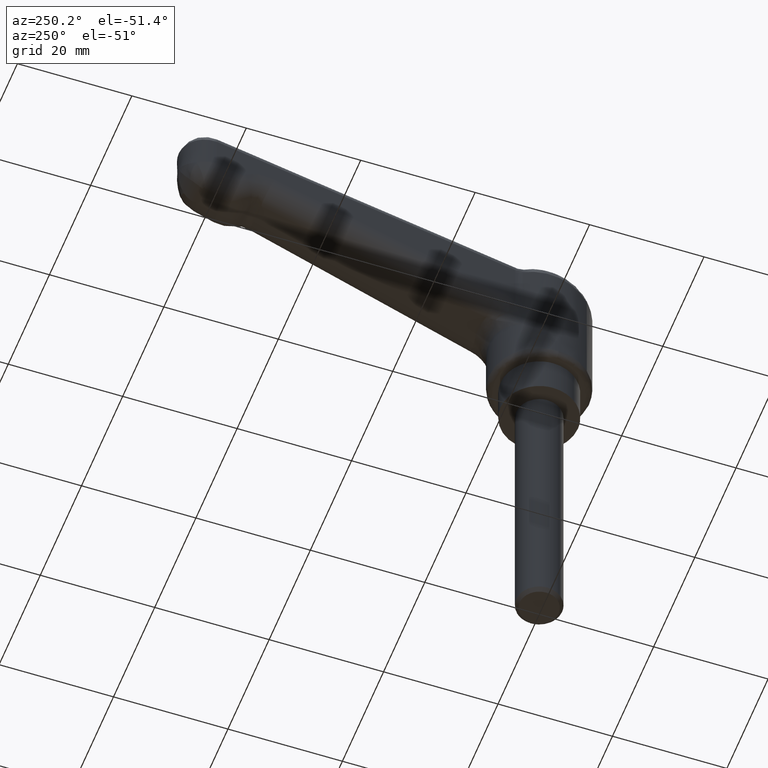
[diagram: clean part render]
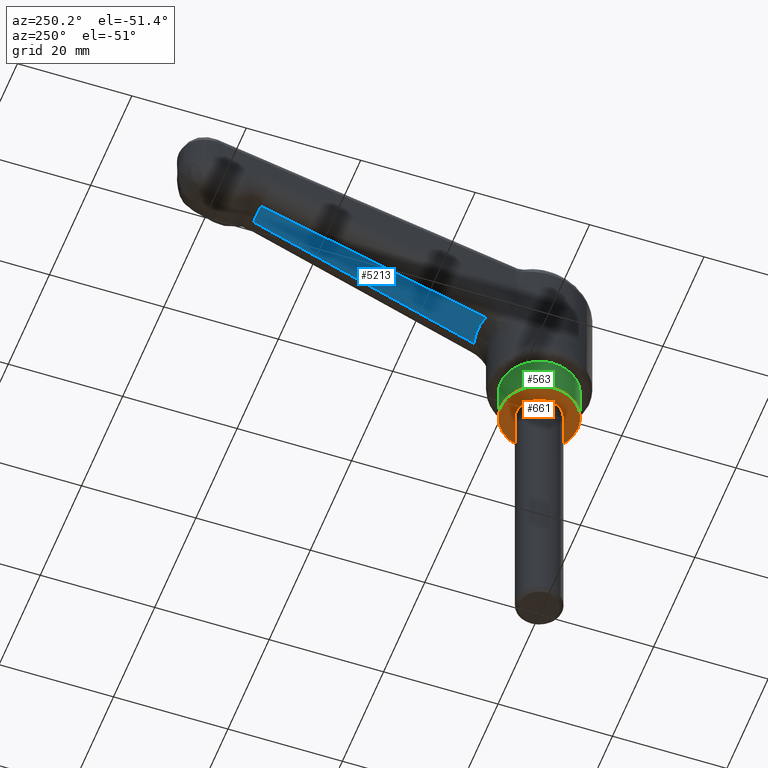
[diagram: same view with three faces highlighted in distinct colors, each labeled with its STEP entity id]
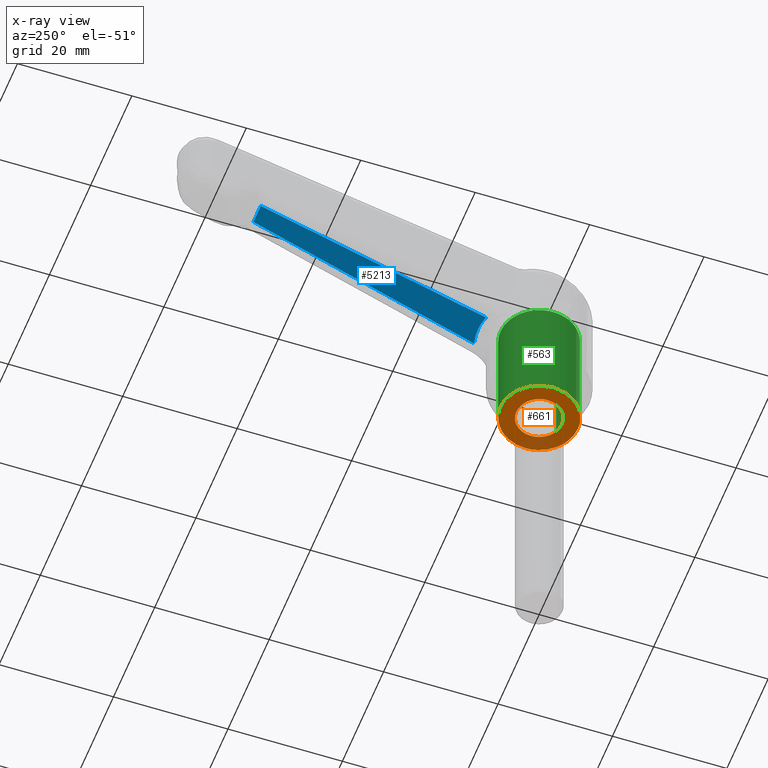
[diagram: x-ray of the same camera — body ghosted, the three highlighted faces saturated]
A machine part, auxiliary view with three faces highlighted in distinct colors.
The next image is the same camera in x-ray (body ghosted, the three faces saturated) — at least one of them is partly hidden behind the body in this view.
Their STEP definitions:

[orange] entity #661 — the highlighted face is a freeform B-spline surface patch.
#299=CARTESIAN_POINT('',(-2.901497246670961,-2.753418077534842,1.110223E-016));
#300=VERTEX_POINT('',#299);
#306=CARTESIAN_POINT('',(-4.0,0.0,0.0));
#307=VERTEX_POINT('',#306);
#308=CARTESIAN_POINT('',(-4.0,0.0,0.0));
#309=CARTESIAN_POINT('',(-4.000077763660245,-0.347977334433312,1.403101E-017));
#310=CARTESIAN_POINT('',(-3.904534334968391,-1.075550676447445,4.336796E-017));
#311=CARTESIAN_POINT('',(-3.503205711203882,-2.016058426142730,8.129076E-017));
#312=CARTESIAN_POINT('',(-3.097487655989828,-2.546916592336573,1.026958E-016));
#313=CARTESIAN_POINT('',(-2.901497246670961,-2.753418077534842,1.110223E-016));
#314=B_SPLINE_CURVE_WITH_KNOTS('',3,(#308,#309,#310,#311,#312,#313),.UNSPECIFIED.,.F.,.U.,(4,1,1,4),(0.000000026868939,1.043932738638871,2.182763257200464,3.036890580233819),.UNSPECIFIED.);
#315=EDGE_CURVE('',#307,#300,#314,.T.);
#317=CARTESIAN_POINT('',(-0.000001310728836,3.999999999999785,0.0));
#318=VERTEX_POINT('',#317);
#319=CARTESIAN_POINT('',(-0.000001310728836,3.999999999999785,0.0));
#320=CARTESIAN_POINT('',(-0.343626388606430,4.000100082920182,0.0));
#321=CARTESIAN_POINT('',(-0.850800286706484,3.934219362505584,0.0));
#322=CARTESIAN_POINT('',(-1.566834308696603,3.697644280529159,0.0));
#323=CARTESIAN_POINT('',(-2.239959267594376,3.353755062563969,0.0));
#324=CARTESIAN_POINT('',(-2.823634423520542,2.868700544100535,0.0));
#325=CARTESIAN_POINT('',(-3.291567598509909,2.298394396195199,0.0));
#326=CARTESIAN_POINT('',(-3.646234368258779,1.706795220943366,0.0));
#327=CARTESIAN_POINT('',(-3.929080404443302,0.916276217007626,0.0));
#328=CARTESIAN_POINT('',(-4.000052812708886,0.310889821988808,0.0));
#329=CARTESIAN_POINT('',(-4.0,0.0,0.0));
#330=B_SPLINE_CURVE_WITH_KNOTS('',3,(#319,#320,#321,#322,#323,#324,#325,#326,#327,#328,#329),.UNSPECIFIED.,.F.,.U.,(4,1,1,1,1,1,1,1,4),(0.000000108513839,1.030840447523887,1.521718289483905,2.258050345883904,3.288864727055504,3.779736266230428,4.466977422615287,5.350560502171157,6.283223992754478),.UNSPECIFIED.);
#331=EDGE_CURVE('',#318,#307,#330,.T.);
#333=CARTESIAN_POINT('',(4.0,0.0,0.0));
#334=VERTEX_POINT('',#333);
#335=CARTESIAN_POINT('',(4.0,0.0,0.0));
#336=CARTESIAN_POINT('',(4.000009832331291,0.212711574215631,0.0));
#337=CARTESIAN_POINT('',(3.962063079485493,0.687213973337722,0.0));
#338=CARTESIAN_POINT('',(3.740118949924691,1.529909188350133,0.0));
#339=CARTESIAN_POINT('',(3.309477418454680,2.312381686260085,0.0));
#340=CARTESIAN_POINT('',(2.746835022839567,2.932882318501319,0.0));
#341=CARTESIAN_POINT('',(2.180230403947981,3.380742059234260,0.0));
#342=CARTESIAN_POINT('',(1.510639130403759,3.733418947625701,0.0));
#343=CARTESIAN_POINT('',(0.752658497355477,3.953173424505867,0.0));
#344=CARTESIAN_POINT('',(0.245430135431822,4.000023969248082,0.0));
#345=CARTESIAN_POINT('',(-0.000001310728836,3.999999999999785,0.0));
#346=B_SPLINE_CURVE_WITH_KNOTS('',3,(#335,#336,#337,#338,#339,#340,#341,#342,#343,#344,#345),.UNSPECIFIED.,.F.,.U.,(4,1,1,1,1,1,1,1,4),(0.000000108058436,0.638138734949206,1.423543139966570,2.601651451234042,3.288865498431841,3.927009203593402,4.761507852815424,5.546930420740713,6.283225470260624),.UNSPECIFIED.);
#347=EDGE_CURVE('',#334,#318,#346,.T.);
#349=CARTESIAN_POINT('',(2.582968428078700,-3.054222762769633,0.0));
#350=VERTEX_POINT('',#349);
#351=CARTESIAN_POINT('',(2.582968428078700,-3.054222762769633,0.0));
#352=CARTESIAN_POINT('',(2.790296136212086,-2.878928578792520,0.0));
#353=CARTESIAN_POINT('',(3.206938756000878,-2.446618998555652,0.0));
#354=CARTESIAN_POINT('',(3.668702686397689,-1.681646929076921,0.0));
#355=CARTESIAN_POINT('',(3.942661626154801,-0.832595813085380,0.0));
#356=CARTESIAN_POINT('',(4.000035068243687,-0.271501380406431,0.0));
#357=CARTESIAN_POINT('',(4.0,0.0,0.0));
#358=B_SPLINE_CURVE_WITH_KNOTS('',3,(#351,#352,#353,#354,#355,#356,#357),.UNSPECIFIED.,.F.,.U.,(4,1,1,1,4),(0.000000035720412,0.814506863919960,1.791900183079446,2.660726399171880,3.475233227349201),.UNSPECIFIED.);
#359=EDGE_CURVE('',#350,#334,#358,.T.);
#385=CARTESIAN_POINT('',(0.000001310728859,-3.999999999999786,0.0));
#386=VERTEX_POINT('',#385);
#387=CARTESIAN_POINT('',(0.000001310728859,-3.999999999999786,0.0));
#388=CARTESIAN_POINT('',(0.365641727732168,-4.000141060668648,0.0));
#389=CARTESIAN_POINT('',(0.965176145681968,-3.917168764754007,0.0));
#390=CARTESIAN_POINT('',(1.843905577036057,-3.584446151881968,0.0));
#391=CARTESIAN_POINT('',(2.326181268750274,-3.271507913737377,0.0));
#392=CARTESIAN_POINT('',(2.582968428078700,-3.054222762769633,0.0));
#393=B_SPLINE_CURVE_WITH_KNOTS('',3,(#387,#388,#389,#390,#391,#392),.UNSPECIFIED.,.F.,.U.,(4,1,1,4),(0.000000020537544,1.096873842027154,1.798867938803672,2.807991780716008),.UNSPECIFIED.);
#394=EDGE_CURVE('',#386,#350,#393,.T.);
#396=CARTESIAN_POINT('',(-2.901497246670961,-2.753418077534842,1.110223E-016));
#397=CARTESIAN_POINT('',(-2.599076194408022,-3.072516339482438,9.945053E-017));
#398=CARTESIAN_POINT('',(-1.983318856102883,-3.536857063637712,7.588933E-017));
#399=CARTESIAN_POINT('',(-0.963723170969565,-3.922187454478040,3.687575E-017));
#400=CARTESIAN_POINT('',(-0.321255402834672,-4.000075260185376,1.229250E-017));
#401=CARTESIAN_POINT('',(0.000001310728859,-3.999999999999786,0.0));
#402=B_SPLINE_CURVE_WITH_KNOTS('',3,(#396,#397,#398,#399,#400,#401),.UNSPECIFIED.,.F.,.U.,(4,1,1,4),(0.000000029101205,1.318825168353258,2.282575932528282,3.246335336364667),.UNSPECIFIED.);
#403=EDGE_CURVE('',#300,#386,#402,.T.);
#436=CARTESIAN_POINT('',(-6.750000000000000,0.0,0.0));
#437=VERTEX_POINT('',#436);
#438=CARTESIAN_POINT('',(-4.707665774555602,-4.837393883639553,2.839428E-017));
#439=VERTEX_POINT('',#438);
#440=CARTESIAN_POINT('',(-6.750000000000000,0.0,0.0));
#441=CARTESIAN_POINT('',(-6.750047336410116,-0.421344151120893,2.473184E-018));
#442=CARTESIAN_POINT('',(-6.678730654075811,-1.179733708012998,6.924739E-018));
#443=CARTESIAN_POINT('',(-6.335750928619945,-2.458479325299646,1.443065E-017));
#444=CARTESIAN_POINT('',(-5.717518469096658,-3.700192278072868,2.171920E-017));
#445=CARTESIAN_POINT('',(-5.049922897159036,-4.504398886519014,2.643969E-017));
#446=CARTESIAN_POINT('',(-4.707665774555602,-4.837393883639553,2.839428E-017));
#447=B_SPLINE_CURVE_WITH_KNOTS('',3,(#440,#441,#442,#443,#444,#445,#446),.UNSPECIFIED.,.F.,.U.,(4,1,1,1,4),(0.000000021332869,1.264032321652425,2.275263053558142,3.960635799513583,5.393206977055107),.UNSPECIFIED.);
#448=EDGE_CURVE('',#437,#439,#447,.T.);
#512=CARTESIAN_POINT('',(4.560234118822306,-4.976622161622396,-6.450396E-013));
#513=VERTEX_POINT('',#512);
#519=CARTESIAN_POINT('',(6.750000000000000,0.0,0.0));
#520=VERTEX_POINT('',#519);
#521=CARTESIAN_POINT('',(4.560234118822306,-4.976622161622396,-6.450396E-013));
#522=CARTESIAN_POINT('',(4.839593815842351,-4.720658857199279,-6.118632E-013));
#523=CARTESIAN_POINT('',(5.414586019725966,-4.097046491192747,-5.310343E-013));
#524=CARTESIAN_POINT('',(6.080686100141539,-3.027513011267005,-3.924079E-013));
#525=CARTESIAN_POINT('',(6.610225220284471,-1.632041069570679,-2.115353E-013));
#526=CARTESIAN_POINT('',(6.750237658830870,-0.612089886491410,-7.933538E-014));
#527=CARTESIAN_POINT('',(6.750000000000000,0.0,0.0));
#528=B_SPLINE_CURVE_WITH_KNOTS('',3,(#521,#522,#523,#524,#525,#526,#527),.UNSPECIFIED.,.F.,.U.,(4,1,1,1,4),(0.000000021068526,1.136687331399160,2.535704602375728,3.759807988967159,5.596001072074944),.UNSPECIFIED.);
#529=EDGE_CURVE('',#513,#520,#528,.T.);
#531=CARTESIAN_POINT('',(-0.000000998770336,6.749999999999925,0.0));
#532=VERTEX_POINT('',#531);
#533=CARTESIAN_POINT('',(6.750000000000000,0.0,0.0));
#534=CARTESIAN_POINT('',(6.750136258018053,0.552243960625429,0.0));
#535=CARTESIAN_POINT('',(6.617115527061538,1.629042355819596,0.0));
#536=CARTESIAN_POINT('',(6.124867501797508,2.928939402502294,0.0));
#537=CARTESIAN_POINT('',(5.477996322479620,3.993137912111419,0.0));
#538=CARTESIAN_POINT('',(4.830648627712150,4.752993725542606,0.0));
#539=CARTESIAN_POINT('',(4.013693036640612,5.457673308529116,0.0));
#540=CARTESIAN_POINT('',(3.006934013023683,6.095333880880379,0.0));
#541=CARTESIAN_POINT('',(1.629036600273349,6.617139910017195,0.0));
#542=CARTESIAN_POINT('',(0.552236735339489,6.750120464792025,0.0));
#543=CARTESIAN_POINT('',(-0.000000998770336,6.749999999999925,0.0));
#544=B_SPLINE_CURVE_WITH_KNOTS('',3,(#533,#534,#535,#536,#537,#538,#539,#540,#541,#542,#543),.UNSPECIFIED.,.F.,.U.,(4,1,1,1,1,1,1,1,4),(0.000000063344105,1.656709023213059,3.230585617361703,4.141793952966691,5.384285430353085,6.212652127103777,7.372359201802700,8.946247108303380,10.602942297336080),.UNSPECIFIED.);
#545=EDGE_CURVE('',#520,#532,#544,.T.);
#547=CARTESIAN_POINT('',(-0.000000998770336,6.749999999999925,0.0));
#548=CARTESIAN_POINT('',(-0.524622463407580,6.750089913100186,0.0));
#549=CARTESIAN_POINT('',(-1.601460507585232,6.623883435731583,0.0));
#550=CARTESIAN_POINT('',(-2.905277826304261,6.139242651621818,0.0));
#551=CARTESIAN_POINT('',(-4.087789726761414,5.420557687663190,0.0));
#552=CARTESIAN_POINT('',(-4.999112414980342,4.604711732190676,0.0));
#553=CARTESIAN_POINT('',(-5.758467362591863,3.580699468427991,0.0));
#554=CARTESIAN_POINT('',(-6.300549757278659,2.520107677927524,0.0));
#555=CARTESIAN_POINT('',(-6.662963774557046,1.325341205957210,0.0));
#556=CARTESIAN_POINT('',(-6.750047966986276,0.441783395306466,0.0));
#557=CARTESIAN_POINT('',(-6.750000000000000,0.0,0.0));
#558=B_SPLINE_CURVE_WITH_KNOTS('',3,(#547,#548,#549,#550,#551,#552,#553,#554,#555,#556,#557),.UNSPECIFIED.,.F.,.U.,(4,1,1,1,1,1,1,1,4),(0.000000063689653,1.573864517690627,3.230585274430066,4.141793513251195,5.715641087214728,6.875333693592918,7.952207010582765,9.277590304940656,10.602941171482099),.UNSPECIFIED.);
#559=EDGE_CURVE('',#532,#437,#558,.T.);
#578=CARTESIAN_POINT('',(0.000000998770202,-6.749999999999926,0.0));
#579=VERTEX_POINT('',#578);
#580=CARTESIAN_POINT('',(-4.707665774555602,-4.837393883639553,2.839428E-017));
#581=CARTESIAN_POINT('',(-4.260554553984607,-5.272824316417907,2.569753E-017));
#582=CARTESIAN_POINT('',(-3.443190793448065,-5.872246501658789,2.076760E-017));
#583=CARTESIAN_POINT('',(-2.294356612312924,-6.371495422479715,1.383841E-017));
#584=CARTESIAN_POINT('',(-1.220986860081883,-6.670106204491453,7.364386E-018));
#585=CARTESIAN_POINT('',(-0.488420935630072,-6.750097305107967,2.945916E-018));
#586=CARTESIAN_POINT('',(0.000000998770202,-6.749999999999926,0.0));
#587=B_SPLINE_CURVE_WITH_KNOTS('',3,(#580,#581,#582,#583,#584,#585,#586),.UNSPECIFIED.,.F.,.U.,(4,1,1,1,4),(0.000000021400204,1.872250162248422,3.011874352324654,3.744496841780908,5.209735619777325),.UNSPECIFIED.);
#588=EDGE_CURVE('',#439,#579,#587,.T.);
#590=CARTESIAN_POINT('',(0.000000998770202,-6.749999999999926,0.0));
#591=CARTESIAN_POINT('',(0.521567947036026,-6.750120939369624,-7.377502E-014));
#592=CARTESIAN_POINT('',(1.277763868577844,-6.661886502877545,-1.807380E-013));
#593=CARTESIAN_POINT('',(2.455957404763574,-6.318069780641911,-3.473921E-013));
#594=CARTESIAN_POINT('',(3.499518649139184,-5.826233824254697,-4.950026E-013));
#595=CARTESIAN_POINT('',(4.233416920362688,-5.276163060300921,-5.988117E-013));
#596=CARTESIAN_POINT('',(4.560234118822306,-4.976622161622396,-6.450396E-013));
#597=B_SPLINE_CURVE_WITH_KNOTS('',3,(#590,#591,#592,#593,#594,#595,#596),.UNSPECIFIED.,.F.,.U.,(4,1,1,1,4),(0.000000020606876,1.564669063019881,2.268781367874067,3.676971222134433,5.006940474752694),.UNSPECIFIED.);
#598=EDGE_CURVE('',#579,#513,#597,.T.);
#640=CARTESIAN_POINT('',(-7.424324973834381,7.424324973834299,0.0));
#641=CARTESIAN_POINT('',(7.424325335932597,7.424324973834299,0.0));
#642=CARTESIAN_POINT('',(-7.424324973834381,-7.424325335932516,0.0));
#643=CARTESIAN_POINT('',(7.424325335932597,-7.424325335932516,0.0));
#644=B_SPLINE_SURFACE_WITH_KNOTS('',1,1,((#640,#642),(#641,#643)),.UNSPECIFIED.,.F.,.F.,.U.,(2,2),(2,2),(0.0,14.848650309766979),(0.0,14.848650309766811),.UNSPECIFIED.);
#645=ORIENTED_EDGE('',*,*,#559,.F.);
#646=ORIENTED_EDGE('',*,*,#545,.F.);
#647=ORIENTED_EDGE('',*,*,#529,.F.);
#648=ORIENTED_EDGE('',*,*,#598,.F.);
#649=ORIENTED_EDGE('',*,*,#588,.F.);
#650=ORIENTED_EDGE('',*,*,#448,.F.);
#651=EDGE_LOOP('',(#645,#646,#647,#648,#649,#650));
#652=FACE_OUTER_BOUND('',#651,.T.);
#653=ORIENTED_EDGE('',*,*,#347,.T.);
#654=ORIENTED_EDGE('',*,*,#331,.T.);
#655=ORIENTED_EDGE('',*,*,#315,.T.);
#656=ORIENTED_EDGE('',*,*,#403,.T.);
#657=ORIENTED_EDGE('',*,*,#394,.T.);
#658=ORIENTED_EDGE('',*,*,#359,.T.);
#659=EDGE_LOOP('',(#653,#654,#655,#656,#657,#658));
#660=FACE_BOUND('',#659,.T.);
#661=ADVANCED_FACE('',(#652,#660),#644,.T.);

[blue] entity #5213 — the highlighted face is a freeform B-spline surface patch.
#3172=CARTESIAN_POINT('',(10.359522173690999,-2.903622422313825,18.684377667119900));
#3173=VERTEX_POINT('',#3172);
#3222=CARTESIAN_POINT('',(49.300344071999113,-1.784934140387715,32.857667846055499));
#3223=VERTEX_POINT('',#3222);
#3245=CARTESIAN_POINT('',(49.300344071999113,-1.784934140387715,32.857667846055499));
#3246=CARTESIAN_POINT('',(10.359522173690999,-2.903622422313825,18.684377667119900));
#3247=QUASI_UNIFORM_CURVE('',1,(#3245,#3246),.UNSPECIFIED.,.F.,.U.);
#3248=EDGE_CURVE('',#3223,#3173,#3247,.T.);
#3708=CARTESIAN_POINT('',(10.359522173690999,2.903622422313820,18.684377667119900));
#3709=VERTEX_POINT('',#3708);
#3758=CARTESIAN_POINT('',(49.300344071999113,1.784934140387715,32.857667846055499));
#3759=VERTEX_POINT('',#3758);
#3774=CARTESIAN_POINT('',(10.359522173690999,2.903622422313820,18.684377667119900));
#3775=CARTESIAN_POINT('',(49.300344071999113,1.784934140387715,32.857667846055499));
#3776=QUASI_UNIFORM_CURVE('',1,(#3774,#3775),.UNSPECIFIED.,.F.,.U.);
#3777=EDGE_CURVE('',#3709,#3759,#3776,.T.);
#4989=CARTESIAN_POINT('',(49.300344071999113,1.784934140387715,32.857667846055499));
#4990=CARTESIAN_POINT('',(49.300344071999113,-1.784934140387715,32.857667846055499));
#4991=QUASI_UNIFORM_CURVE('',1,(#4989,#4990),.UNSPECIFIED.,.F.,.U.);
#4992=EDGE_CURVE('',#3759,#3223,#4991,.T.);
#5124=CARTESIAN_POINT('',(10.359522173690999,-2.903622422313825,18.684377667119900));
#5125=CARTESIAN_POINT('',(10.487836621823490,-2.401586238627246,18.731080274278039));
#5126=CARTESIAN_POINT('',(10.700132750694770,-1.257815553961558,18.808349692119691));
#5127=CARTESIAN_POINT('',(10.769167585533760,0.706940979714736,18.833476299595620));
#5128=CARTESIAN_POINT('',(10.555852092136950,2.135819450410849,18.755835863667691));
#5129=CARTESIAN_POINT('',(10.359522173690999,2.903622422313820,18.684377667119900));
#5130=B_SPLINE_CURVE_WITH_KNOTS('',3,(#5124,#5125,#5126,#5127,#5128,#5129),.UNSPECIFIED.,.F.,.U.,(4,1,1,4),(8.522018E-009,1.560832915503926,3.488915614575516,5.876074603483098),.UNSPECIFIED.);
#5131=EDGE_CURVE('',#3173,#3709,#5130,.T.);
#5202=CARTESIAN_POINT('',(8.414427968920789,-3.193694291047408,17.976421767740849));
#5203=CARTESIAN_POINT('',(51.245436187820879,-3.193694291047408,33.565622985119951));
#5204=CARTESIAN_POINT('',(8.414427968920789,3.193694446809848,17.976421767740849));
#5205=CARTESIAN_POINT('',(51.245436187820879,3.193694446809848,33.565622985119951));
#5206=B_SPLINE_SURFACE_WITH_KNOTS('',1,1,((#5202,#5204),(#5203,#5205)),.UNSPECIFIED.,.F.,.F.,.U.,(2,2),(2,2),(0.0,45.579803198822837),(0.0,6.387388737857256),.UNSPECIFIED.);
#5207=ORIENTED_EDGE('',*,*,#4992,.T.);
#5208=ORIENTED_EDGE('',*,*,#3248,.T.);
#5209=ORIENTED_EDGE('',*,*,#5131,.T.);
#5210=ORIENTED_EDGE('',*,*,#3777,.T.);
#5211=EDGE_LOOP('',(#5207,#5208,#5209,#5210));
#5212=FACE_OUTER_BOUND('',#5211,.T.);
#5213=ADVANCED_FACE('',(#5212),#5206,.F.);

[green] entity #563 — the highlighted face is a freeform B-spline surface patch.
#410=CARTESIAN_POINT('',(-4.707665948634954,-4.837394062515783,20.500000000000004));
#411=CARTESIAN_POINT('',(-4.846110088419099,-4.702662685615937,20.500000000000000));
#412=CARTESIAN_POINT('',(-4.976622023468336,-4.560233901405705,20.500000000000000));
#413=CARTESIAN_POINT('',(-9.536855924874040,0.416388122062631,20.500000000000007));
#414=CARTESIAN_POINT('',(-4.560233901405705,4.976622023468336,20.500000000000000));
#415=CARTESIAN_POINT('',(0.416388122062631,9.536855924874040,20.500000000000007));
#416=CARTESIAN_POINT('',(4.976622023468336,4.560233901405705,20.500000000000000));
#417=CARTESIAN_POINT('',(9.536855924874040,-0.416388122062631,20.500000000000007));
#418=CARTESIAN_POINT('',(4.560233901405705,-4.976622023468336,20.500000000000000));
#419=CARTESIAN_POINT('',(-4.707665948634954,-4.837394062515783,-0.512500000000003));
#420=CARTESIAN_POINT('',(-4.846110088419099,-4.702662685615937,-0.512500000000003));
#421=CARTESIAN_POINT('',(-4.976622023468336,-4.560233901405705,-0.512500000000003));
#422=CARTESIAN_POINT('',(-9.536855924874040,0.416388122062631,-0.512500000000003));
#423=CARTESIAN_POINT('',(-4.560233901405705,4.976622023468336,-0.512500000000003));
#424=CARTESIAN_POINT('',(0.416388122062631,9.536855924874040,-0.512500000000003));
#425=CARTESIAN_POINT('',(4.976622023468336,4.560233901405705,-0.512500000000003));
#426=CARTESIAN_POINT('',(9.536855924874040,-0.416388122062631,-0.512500000000003));
#427=CARTESIAN_POINT('',(4.560233901405705,-4.976622023468336,-0.512500000000003));
#435=(BOUNDED_SURFACE()B_SPLINE_SURFACE(2,1,((#410,#419),(#411,#420),(#412,#421),(#413,#422),(#414,#423),(#415,#424),(#416,#425),(#417,#426),(#418,#427)),.UNSPECIFIED.,.F.,.F.,.U.)B_SPLINE_SURFACE_WITH_KNOTS((3,2,2,2,3),(2,2),(0.0,0.447350647362943,11.631116831436509,22.814883015510070,33.998649199583632),(0.0,21.012500000000010),.UNSPECIFIED.)GEOMETRIC_REPRESENTATION_ITEM()RATIONAL_B_SPLINE_SURFACE(((0.977505800795127,0.977505800795127),(0.988284271247462,0.988284271247462),(1.0,1.0),(0.707106781186548,0.707106781186548),(1.0,1.0),(0.707106781186548,0.707106781186548),(1.0,1.0),(0.707106781186548,0.707106781186548),(1.0,1.0)))REPRESENTATION_ITEM('')SURFACE());
#436=CARTESIAN_POINT('',(-6.750000000000000,0.0,0.0));
#437=VERTEX_POINT('',#436);
#438=CARTESIAN_POINT('',(-4.707665774555602,-4.837393883639553,2.839428E-017));
#439=VERTEX_POINT('',#438);
#440=CARTESIAN_POINT('',(-6.750000000000000,0.0,0.0));
#441=CARTESIAN_POINT('',(-6.750047336410116,-0.421344151120893,2.473184E-018));
#442=CARTESIAN_POINT('',(-6.678730654075811,-1.179733708012998,6.924739E-018));
#443=CARTESIAN_POINT('',(-6.335750928619945,-2.458479325299646,1.443065E-017));
#444=CARTESIAN_POINT('',(-5.717518469096658,-3.700192278072868,2.171920E-017));
#445=CARTESIAN_POINT('',(-5.049922897159036,-4.504398886519014,2.643969E-017));
#446=CARTESIAN_POINT('',(-4.707665774555602,-4.837393883639553,2.839428E-017));
#447=B_SPLINE_CURVE_WITH_KNOTS('',3,(#440,#441,#442,#443,#444,#445,#446),.UNSPECIFIED.,.F.,.U.,(4,1,1,1,4),(0.000000021332869,1.264032321652425,2.275263053558142,3.960635799513583,5.393206977055107),.UNSPECIFIED.);
#448=EDGE_CURVE('',#437,#439,#447,.T.);
#449=ORIENTED_EDGE('',*,*,#448,.T.);
#450=CARTESIAN_POINT('',(-4.707665774555602,-4.837393883639553,20.0));
#451=VERTEX_POINT('',#450);
#452=CARTESIAN_POINT('',(-4.707665774555602,-4.837393883639553,20.0));
#453=CARTESIAN_POINT('',(-4.707665774555602,-4.837393883639553,2.839428E-017));
#454=QUASI_UNIFORM_CURVE('',1,(#452,#453),.UNSPECIFIED.,.F.,.U.);
#455=EDGE_CURVE('',#451,#439,#454,.T.);
#456=ORIENTED_EDGE('',*,*,#455,.F.);
#457=CARTESIAN_POINT('',(-6.750000000000000,0.0,20.0));
#458=VERTEX_POINT('',#457);
#459=CARTESIAN_POINT('',(-6.750000000000000,0.0,20.0));
#460=CARTESIAN_POINT('',(-6.750047852459818,-0.421344382200241,19.999999999999979));
#461=CARTESIAN_POINT('',(-6.678750180061511,-1.179743160758535,20.000000000000082));
#462=CARTESIAN_POINT('',(-6.408624211550302,-2.186355254477525,19.999999999999890));
#463=CARTESIAN_POINT('',(-6.014554966165452,-3.119779151055231,20.000000000000050));
#464=CARTESIAN_POINT('',(-5.469862901057756,-4.009576945231448,20.000000000000039));
#465=CARTESIAN_POINT('',(-4.969372797715725,-4.582732008596127,19.999999999999972));
#466=CARTESIAN_POINT('',(-4.707665774555602,-4.837393883639553,20.0));
#467=B_SPLINE_CURVE_WITH_KNOTS('',3,(#459,#460,#461,#462,#463,#464,#465,#466),.UNSPECIFIED.,.F.,.U.,(4,1,1,1,1,4),(0.000000021332869,1.264032321652425,2.275263053558142,3.117943944847564,4.297715579759432,5.393206977055107),.UNSPECIFIED.);
#468=EDGE_CURVE('',#458,#451,#467,.T.);
#469=ORIENTED_EDGE('',*,*,#468,.F.);
#470=CARTESIAN_POINT('',(-0.000000998770336,6.749999999999925,20.0));
#471=VERTEX_POINT('',#470);
#472=CARTESIAN_POINT('',(-0.000000998770336,6.749999999999925,20.0));
#473=CARTESIAN_POINT('',(-0.524631747445214,6.750110307263759,20.000000000000011));
#474=CARTESIAN_POINT('',(-1.325311384082799,6.656164600320455,19.999999999999961));
#475=CARTESIAN_POINT('',(-2.357723671330400,6.342917325021261,20.000000000000028));
#476=CARTESIAN_POINT('',(-3.369427482873381,5.894627709943009,19.999999999999940));
#477=CARTESIAN_POINT('',(-4.378754531556544,5.202125329216883,20.000000000000121));
#478=CARTESIAN_POINT('',(-5.276839458970125,4.258664903834936,19.999999999999769));
#479=CARTESIAN_POINT('',(-5.960187740921620,3.249479722978194,20.000000000000359));
#480=CARTESIAN_POINT('',(-6.570527255918871,1.849817054373054,19.999999999999591));
#481=CARTESIAN_POINT('',(-6.750311248677847,0.690323562978389,20.000000000000220));
#482=CARTESIAN_POINT('',(-6.750000000000000,0.0,20.0));
#483=B_SPLINE_CURVE_WITH_KNOTS('',3,(#472,#473,#474,#475,#476,#477,#478,#479,#480,#481,#482),.UNSPECIFIED.,.F.,.U.,(4,1,1,1,1,1,1,1,4),(0.000000063689653,1.573864517690627,2.402228265621648,3.230585274430066,4.887302855312617,6.046968030854600,7.123840372897853,8.532062631622923,10.602941171482099),.UNSPECIFIED.);
#484=EDGE_CURVE('',#471,#458,#483,.T.);
#485=ORIENTED_EDGE('',*,*,#484,.F.);
#486=CARTESIAN_POINT('',(6.750000000000000,0.0,20.0));
#487=VERTEX_POINT('',#486);
#488=CARTESIAN_POINT('',(6.750000000000000,0.0,20.0));
#489=CARTESIAN_POINT('',(6.750138798138079,0.552245415017492,19.999999999999989));
#490=CARTESIAN_POINT('',(6.617104526615731,1.629034899699594,20.000000000000028));
#491=CARTESIAN_POINT('',(6.036317173709437,3.162953865945357,20.000000000000039));
#492=CARTESIAN_POINT('',(5.107715216543037,4.516453490831710,19.999999999999758));
#493=CARTESIAN_POINT('',(3.919750659285771,5.566868829422893,20.000000000000309));
#494=CARTESIAN_POINT('',(2.723917989578697,6.215360291891154,19.999999999999730));
#495=CARTESIAN_POINT('',(1.435739623917982,6.640939025971506,20.000000000000501));
#496=CARTESIAN_POINT('',(0.552240922458100,6.750136130865924,19.999999999999400));
#497=CARTESIAN_POINT('',(-0.000000998770336,6.749999999999925,20.0));
#498=B_SPLINE_CURVE_WITH_KNOTS('',3,(#488,#489,#490,#491,#492,#493,#494,#495,#496,#497),.UNSPECIFIED.,.F.,.U.,(4,1,1,1,1,1,1,4),(0.000000063344105,1.656709023213059,3.230585617361703,4.887303374934568,6.543998433416576,7.952207855107704,8.946247108303380,10.602942297336080),.UNSPECIFIED.);
#499=EDGE_CURVE('',#487,#471,#498,.T.);
#500=ORIENTED_EDGE('',*,*,#499,.F.);
#501=CARTESIAN_POINT('',(4.560234118204671,-4.976622162188354,20.0));
#502=VERTEX_POINT('',#501);
#503=CARTESIAN_POINT('',(4.560234118204671,-4.976622162188354,20.0));
#504=CARTESIAN_POINT('',(5.054707027440333,-4.523949096230874,20.000000000000082));
#505=CARTESIAN_POINT('',(5.814082233160479,-3.584155333432846,19.999999999999879));
#506=CARTESIAN_POINT('',(6.570486490534287,-1.865187413270160,20.000000000000220));
#507=CARTESIAN_POINT('',(6.750301696936640,-0.670378133178422,19.999999999999758));
#508=CARTESIAN_POINT('',(6.750000000000000,0.0,20.0));
#509=B_SPLINE_CURVE_WITH_KNOTS('',3,(#503,#504,#505,#506,#507,#508),.UNSPECIFIED.,.F.,.U.,(4,1,1,4),(0.000000021069125,2.011071646522646,3.584929447468332,5.596001072912679),.UNSPECIFIED.);
#510=EDGE_CURVE('',#502,#487,#509,.T.);
#511=ORIENTED_EDGE('',*,*,#510,.F.);
#512=CARTESIAN_POINT('',(4.560234118822306,-4.976622161622396,-6.450396E-013));
#513=VERTEX_POINT('',#512);
#514=CARTESIAN_POINT('',(4.560234118204671,-4.976622162188354,20.0));
#515=CARTESIAN_POINT('',(4.560234118822306,-4.976622161622396,-6.450396E-013));
#516=QUASI_UNIFORM_CURVE('',1,(#514,#515),.UNSPECIFIED.,.F.,.U.);
#517=EDGE_CURVE('',#502,#513,#516,.T.);
#518=ORIENTED_EDGE('',*,*,#517,.T.);
#519=CARTESIAN_POINT('',(6.750000000000000,0.0,0.0));
#520=VERTEX_POINT('',#519);
#521=CARTESIAN_POINT('',(4.560234118822306,-4.976622161622396,-6.450396E-013));
#522=CARTESIAN_POINT('',(4.839593815842351,-4.720658857199279,-6.118632E-013));
#523=CARTESIAN_POINT('',(5.414586019725966,-4.097046491192747,-5.310343E-013));
#524=CARTESIAN_POINT('',(6.080686100141539,-3.027513011267005,-3.924079E-013));
#525=CARTESIAN_POINT('',(6.610225220284471,-1.632041069570679,-2.115353E-013));
#526=CARTESIAN_POINT('',(6.750237658830870,-0.612089886491410,-7.933538E-014));
#527=CARTESIAN_POINT('',(6.750000000000000,0.0,0.0));
#528=B_SPLINE_CURVE_WITH_KNOTS('',3,(#521,#522,#523,#524,#525,#526,#527),.UNSPECIFIED.,.F.,.U.,(4,1,1,1,4),(0.000000021068526,1.136687331399160,2.535704602375728,3.759807988967159,5.596001072074944),.UNSPECIFIED.);
#529=EDGE_CURVE('',#513,#520,#528,.T.);
#530=ORIENTED_EDGE('',*,*,#529,.T.);
#531=CARTESIAN_POINT('',(-0.000000998770336,6.749999999999925,0.0));
#532=VERTEX_POINT('',#531);
#533=CARTESIAN_POINT('',(6.750000000000000,0.0,0.0));
#534=CARTESIAN_POINT('',(6.750136258018053,0.552243960625429,0.0));
#535=CARTESIAN_POINT('',(6.617115527061538,1.629042355819596,0.0));
#536=CARTESIAN_POINT('',(6.124867501797508,2.928939402502294,0.0));
#537=CARTESIAN_POINT('',(5.477996322479620,3.993137912111419,0.0));
#538=CARTESIAN_POINT('',(4.830648627712150,4.752993725542606,0.0));
#539=CARTESIAN_POINT('',(4.013693036640612,5.457673308529116,0.0));
#540=CARTESIAN_POINT('',(3.006934013023683,6.095333880880379,0.0));
#541=CARTESIAN_POINT('',(1.629036600273349,6.617139910017195,0.0));
#542=CARTESIAN_POINT('',(0.552236735339489,6.750120464792025,0.0));
#543=CARTESIAN_POINT('',(-0.000000998770336,6.749999999999925,0.0));
#544=B_SPLINE_CURVE_WITH_KNOTS('',3,(#533,#534,#535,#536,#537,#538,#539,#540,#541,#542,#543),.UNSPECIFIED.,.F.,.U.,(4,1,1,1,1,1,1,1,4),(0.000000063344105,1.656709023213059,3.230585617361703,4.141793952966691,5.384285430353085,6.212652127103777,7.372359201802700,8.946247108303380,10.602942297336080),.UNSPECIFIED.);
#545=EDGE_CURVE('',#520,#532,#544,.T.);
#546=ORIENTED_EDGE('',*,*,#545,.T.);
#547=CARTESIAN_POINT('',(-0.000000998770336,6.749999999999925,0.0));
#548=CARTESIAN_POINT('',(-0.524622463407580,6.750089913100186,0.0));
#549=CARTESIAN_POINT('',(-1.601460507585232,6.623883435731583,0.0));
#550=CARTESIAN_POINT('',(-2.905277826304261,6.139242651621818,0.0));
#551=CARTESIAN_POINT('',(-4.087789726761414,5.420557687663190,0.0));
#552=CARTESIAN_POINT('',(-4.999112414980342,4.604711732190676,0.0));
#553=CARTESIAN_POINT('',(-5.758467362591863,3.580699468427991,0.0));
#554=CARTESIAN_POINT('',(-6.300549757278659,2.520107677927524,0.0));
#555=CARTESIAN_POINT('',(-6.662963774557046,1.325341205957210,0.0));
#556=CARTESIAN_POINT('',(-6.750047966986276,0.441783395306466,0.0));
#557=CARTESIAN_POINT('',(-6.750000000000000,0.0,0.0));
#558=B_SPLINE_CURVE_WITH_KNOTS('',3,(#547,#548,#549,#550,#551,#552,#553,#554,#555,#556,#557),.UNSPECIFIED.,.F.,.U.,(4,1,1,1,1,1,1,1,4),(0.000000063689653,1.573864517690627,3.230585274430066,4.141793513251195,5.715641087214728,6.875333693592918,7.952207010582765,9.277590304940656,10.602941171482099),.UNSPECIFIED.);
#559=EDGE_CURVE('',#532,#437,#558,.T.);
#560=ORIENTED_EDGE('',*,*,#559,.T.);
#561=EDGE_LOOP('',(#449,#456,#469,#485,#500,#511,#518,#530,#546,#560));
#562=FACE_OUTER_BOUND('',#561,.T.);
#563=ADVANCED_FACE('',(#562),#435,.T.);